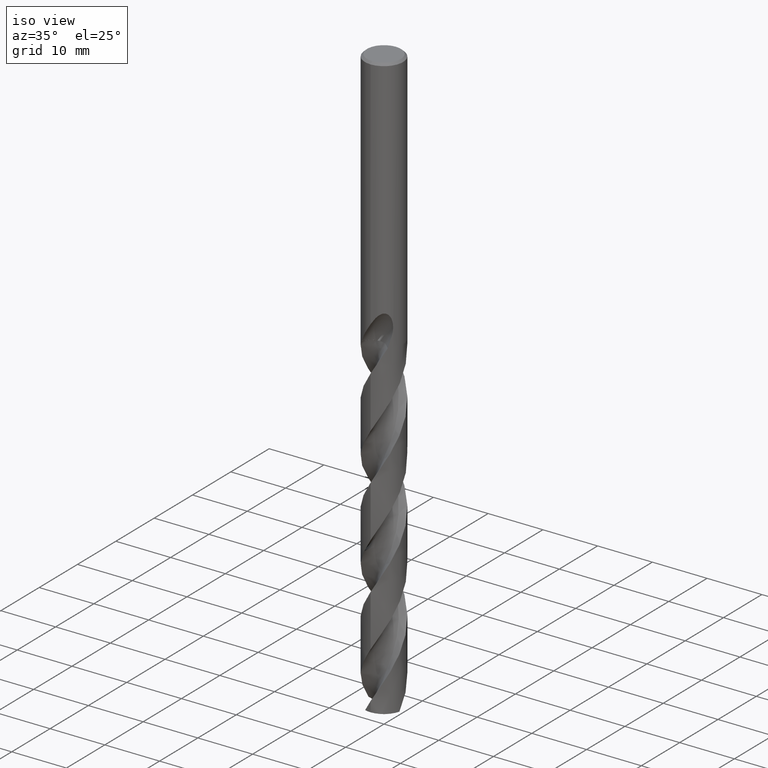
[diagram: clean part render]
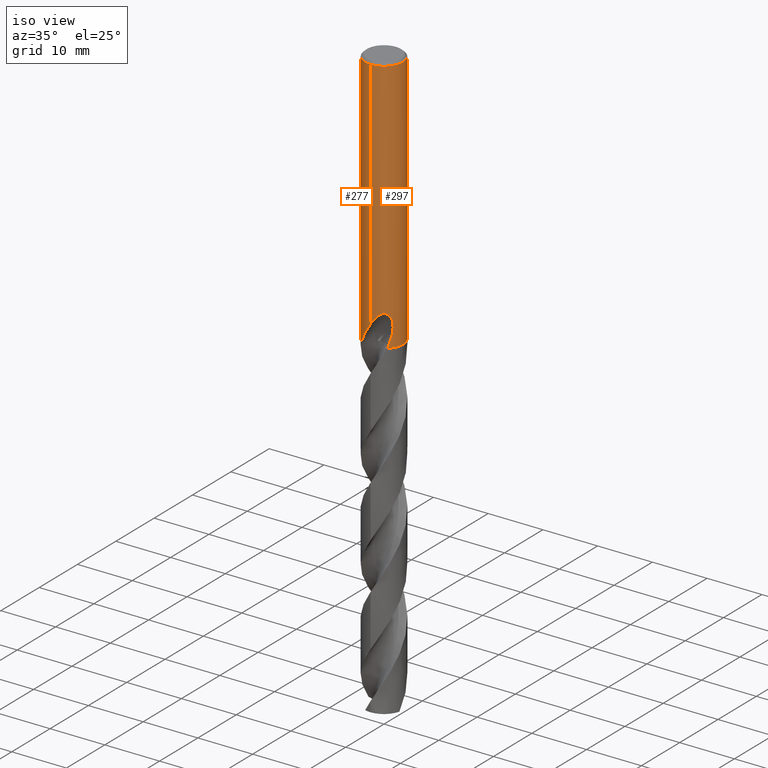
[diagram: same view with one multi-face feature highlighted, each face labeled with its STEP entity id]
A machine part, iso view. The highlighted faces form ONE feature: a constant-radius fillet chain: 2 tangent blend faces with common blend radius 3.5 mm. The faces share edges in the B-rep.
Their STEP definitions:
[1] entity #277 (Cylinder):
#277=ADVANCED_FACE('',(#776),#777,.T.);
#281=VERTEX_POINT('',#782);
#287=EDGE_CURVE('',#439,#727,#788,.T.);
#293=EDGE_CURVE('',#727,#481,#795,.T.);
#327=EDGE_CURVE('',#377,#693,#833,.T.);
#349=VERTEX_POINT('',#856);
#351=EDGE_CURVE('',#621,#405,#858,.T.);
#365=EDGE_CURVE('',#349,#511,#874,.T.);
#377=VERTEX_POINT('',#887);
#391=EDGE_CURVE('',#511,#671,#903,.T.);
#405=VERTEX_POINT('',#918);
#439=VERTEX_POINT('',#955);
#477=EDGE_CURVE('',#651,#621,#994,.T.);
#481=VERTEX_POINT('',#998);
#503=EDGE_CURVE('',#281,#439,#1021,.T.);
#505=EDGE_CURVE('',#535,#693,#1023,.T.);
#511=VERTEX_POINT('',#1029);
#535=VERTEX_POINT('',#1055);
#571=EDGE_CURVE('',#661,#349,#1097,.T.);
#575=VERTEX_POINT('',#1102);
#583=EDGE_CURVE('',#575,#535,#1111,.T.);
#595=EDGE_CURVE('',#671,#575,#1124,.T.);
#621=VERTEX_POINT('',#1151);
#651=VERTEX_POINT('',#1184);
#655=EDGE_CURVE('',#377,#651,#1189,.T.);
#661=VERTEX_POINT('',#1195);
#665=EDGE_CURVE('',#405,#281,#1200,.T.);
#671=VERTEX_POINT('',#1206);
#693=VERTEX_POINT('',#1228);
#727=VERTEX_POINT('',#1267);
#737=EDGE_CURVE('',#481,#661,#1278,.T.);
#776=FACE_OUTER_BOUND('',#1312,.T.);
#777=CYLINDRICAL_SURFACE('',#1313,3.5);
#782=CARTESIAN_POINT('',(-2.60338784749601E-016,3.5,-31.0232688117743));
#788=B_SPLINE_CURVE_WITH_KNOTS('',3,(#1357,#1358,#1359,#1360,#1361,#1362,#1363,#1364,#1365,#1366,#1367,#1368,#1369,#1370,#1371,#1372,#1373,#1374,#1375,#1376,#1377,#1378,#1379,#1380,#1381,#1382,#1383),.UNSPECIFIED.,.F.,.F.,(4,2,3,2,2,2,2,2,2,2,2,2,4),(-0.543484254650614,-0.271742127325307,0.0,0.271742127325305,0.543484254650611,0.816381403157209,1.08927855166381,1.3602045213886,1.63113049111339,1.90263728972204,2.17414408833069,2.44565088693934,2.71715768554799),.UNSPECIFIED.);
#795=CIRCLE('',#1392,3.5);
#833=CIRCLE('',#1915,3.5);
#856=CARTESIAN_POINT('',(-1.83766677017162E-015,3.5,-31.7128911336578));
#858=CIRCLE('',#2083,3.5);
#874=ELLIPSE('',#2101,3.90224951215001,3.5);
#887=CARTESIAN_POINT('',(-2.22788020567131,-2.69936099645415,-47.0));
#903=B_SPLINE_CURVE_WITH_KNOTS('',3,(#2330,#2331,#2332,#2333,#2334,#2335,#2336,#2337,#2338,#2339,#2340,#2341,#2342,#2343,#2344,#2345),.UNSPECIFIED.,.F.,.F.,(4,2,2,2,2,2,2,4),(5.61827440589366,6.24325795604404,6.55552956281653,6.86780116958902,7.18007277636152,7.49234438313401,7.80363043393267,8.11491648473134),.UNSPECIFIED.);
#918=CARTESIAN_POINT('',(0.0,3.5,-0.399999999999999));
#955=CARTESIAN_POINT('',(-0.486378944383046,3.4660403232595,-30.6432837483006));
#994=LINE('',#3463,#3464);
#998=CARTESIAN_POINT('',(-1.0350734039088,3.3434447877183,-30.3171221986971));
#1021=B_SPLINE_CURVE_WITH_KNOTS('',3,(#3822,#3823,#3824,#3825,#3826,#3827,#3828,#3829,#3830,#3831,#3832,#3833,#3834,#3835,#3836,#3837,#3838,#3839,#3840,#3841,#3842,#3843,#3844,#3845,#3846,#3847,#3848),.UNSPECIFIED.,.F.,.F.,(4,2,3,2,2,2,2,2,2,2,2,2,4),(-0.543484254650614,-0.271742127325307,0.0,0.271742127325305,0.543484254650611,0.816381403157209,1.08927855166381,1.3602045213886,1.63113049111339,1.90263728972204,2.17414408833069,2.44565088693934,2.71715768554799),.UNSPECIFIED.);
#1023=B_SPLINE_CURVE_WITH_KNOTS('',3,(#3851,#3852,#3853,#3854),.UNSPECIFIED.,.F.,.F.,(4,4),(0.0,2.00625835281019),.UNSPECIFIED.);
#1029=CARTESIAN_POINT('',(-1.337052752443,3.2345463263315,-32.3720803908795));
#1055=CARTESIAN_POINT('',(-2.84774757150296,2.0347810125414,-45.0884691981407));
#1097=LINE('',#6696,#6697);
#1102=CARTESIAN_POINT('',(-1.09667056523172E-012,3.5,-43.2845758815807));
#1111=B_SPLINE_CURVE_WITH_KNOTS('',3,(#6714,#6715,#6716,#6717,#6718,#6719,#6720,#6721,#6722,#6723,#6724,#6725,#6726,#6727,#6728,#6729,#6730,#6731,#6732,#6733,#6734,#6735,#6736,#6737,#6738,#6739,#6740,#6741,#6742,#6743),.UNSPECIFIED.,.F.,.F.,(4,2,2,2,2,2,2,2,2,2,2,2,2,2,4),(0.0,1.71116526738578,2.6471547265802,3.49547007862415,4.48132816066723,5.66529751259973,6.68921363620308,7.15405976581515,7.49385065034492,7.81542178656768,8.2233983531826,8.82032236343904,9.66889340506496,10.2238822809222,10.8071269736046),.UNSPECIFIED.);
#1124=LINE('',#7018,#7019);
#1151=CARTESIAN_POINT('',(4.28612223837832E-016,-3.5,-0.399999999999999));
#1184=CARTESIAN_POINT('',(1.09977918970067E-012,-3.5,-43.2845758815807));
#1189=B_SPLINE_CURVE_WITH_KNOTS('',3,(#7741,#7742,#7743,#7744,#7745,#7746,#7747,#7748,#7749,#7750,#7751,#7752,#7753,#7754,#7755,#7756,#7757,#7758,#7759,#7760,#7761,#7762,#7763,#7764,#7765,#7766,#7767,#7768,#7769,#7770),.UNSPECIFIED.,.F.,.F.,(4,2,2,2,2,2,2,2,2,2,2,2,2,2,4),(0.0,1.71116526738577,2.64715472658023,3.49547007862428,4.48132816066744,5.66529751259995,6.68921363620334,7.15405976581542,7.49385065034519,7.81542178656799,8.22339835318292,8.82032236343982,9.66889340506738,10.2238822809258,10.8071269736094),.UNSPECIFIED.);
#1195=CARTESIAN_POINT('',(2.35719168458961E-016,3.5,-31.5000801551881));
#1200=LINE('',#7786,#7787);
#1206=CARTESIAN_POINT('',(-2.46407913303377E-016,3.5,-33.0310253601033));
#1228=CARTESIAN_POINT('',(-2.43409041602597,2.51499579455126,-47.0));
#1267=CARTESIAN_POINT('',(-0.562333990228013,3.45453042878974,-30.3171221986971));
#1278=B_SPLINE_CURVE_WITH_KNOTS('',3,(#8212,#8213,#8214,#8215,#8216,#8217,#8218,#8219,#8220,#8221,#8222,#8223,#8224,#8225),.UNSPECIFIED.,.F.,.F.,(4,2,2,2,2,2,4),(3.14868984543855,3.59790121580492,4.04711258617129,4.49632395653767,4.94357829339147,5.39083263024527,5.84328787107555),.UNSPECIFIED.);
#1312=EDGE_LOOP('',(#8569,#8570,#8571,#8572,#8573,#8574,#8575,#8576,#8577,#8578,#8579,#8580,#8581,#8582,#8583));
#1313=AXIS2_PLACEMENT_3D('',#8584,#8585,#8586);
#1357=CARTESIAN_POINT('',(0.665413128961688,3.4361643394642,-29.8138871855834));
#1358=CARTESIAN_POINT('',(0.728801807700797,3.42388912358581,-29.8774171733485));
#1359=CARTESIAN_POINT('',(0.783927402615871,3.4112870773283,-29.9579012004541));
#1360=CARTESIAN_POINT('',(0.857236734720557,3.39360677006719,-30.1347078448073));
#1361=CARTESIAN_POINT('',(0.875400981188567,3.38875686972879,-30.2310613034783));
#1362=CARTESIAN_POINT('',(0.875400981188567,3.38875686972879,-30.3216420125868));
#1363=CARTESIAN_POINT('',(0.875400981188567,3.38875686972879,-30.4122227216952));
#1364=CARTESIAN_POINT('',(0.857236734720557,3.39360677006719,-30.5085761803663));
#1365=CARTESIAN_POINT('',(0.783927402615871,3.4112870773283,-30.6853828247195));
#1366=CARTESIAN_POINT('',(0.728801807700796,3.42388912358581,-30.765866851825));
#1367=CARTESIAN_POINT('',(0.601755021012917,3.44849173030156,-30.8931968571892));
#1368=CARTESIAN_POINT('',(0.521126730147254,3.46213736669293,-30.9485794814319));
#1369=CARTESIAN_POINT('',(0.34396562102774,3.48420089342214,-31.0222492773525));
#1370=CARTESIAN_POINT('',(0.247401094025478,3.49243002223282,-31.0405166027747));
#1371=CARTESIAN_POINT('',(0.0663080901676053,3.50053694318896,-31.0405166027747));
#1372=CARTESIAN_POINT('',(-0.0299521610428208,3.50099182377608,-31.0224848215348));
#1373=CARTESIAN_POINT('',(-0.206948225759865,3.49499832821332,-30.9492096137884));
#1374=CARTESIAN_POINT('',(-0.287693654744308,3.48874427648497,-30.8939736481506));
#1375=CARTESIAN_POINT('',(-0.41531184898676,3.47586506507811,-30.766536164624));
#1376=CARTESIAN_POINT('',(-0.470694976922282,3.46840404735172,-30.6857495661433));
#1377=CARTESIAN_POINT('',(-0.54421745324327,3.45763037063203,-30.5085617731862));
#1378=CARTESIAN_POINT('',(-0.562348199187247,3.45452811580263,-30.4121442787897));
#1379=CARTESIAN_POINT('',(-0.562348199187247,3.45452811580263,-30.2311397463839));
#1380=CARTESIAN_POINT('',(-0.54421745324327,3.45763037063203,-30.1347222519874));
#1381=CARTESIAN_POINT('',(-0.470694976922282,3.46840404735172,-29.9575344590302));
#1382=CARTESIAN_POINT('',(-0.415311848986761,3.4758650650781,-29.8767478605496));
#1383=CARTESIAN_POINT('',(-0.35143442604006,3.48231156621487,-29.812960889712));
#1392=AXIS2_PLACEMENT_3D('',#8613,#8614,#8615);
#1915=AXIS2_PLACEMENT_3D('',#8659,#8660,#8661);
#2083=AXIS2_PLACEMENT_3D('',#8690,#8691,#8692);
#2101=AXIS2_PLACEMENT_3D('',#8712,#8713,#8714);
#2330=CARTESIAN_POINT('',(-1.53123731367784,3.14727060946476,-32.0302338343776));
#2331=CARTESIAN_POINT('',(-1.44775267944815,3.18788821160556,-32.2301414615575));
#2332=CARTESIAN_POINT('',(-1.32320222892012,3.24378293325148,-32.4109343660825));
#2333=CARTESIAN_POINT('',(-1.10913330987776,3.32047634661098,-32.6251722383969));
#2334=CARTESIAN_POINT('',(-1.02846849785727,3.34673271569839,-32.6924314529816));
#2335=CARTESIAN_POINT('',(-0.852249083524064,3.39588557240625,-32.811532240935));
#2336=CARTESIAN_POINT('',(-0.756690285094466,3.41874417478296,-32.8633832377954));
#2337=CARTESIAN_POINT('',(-0.556428067737093,3.45698998176039,-32.9471055144934));
#2338=CARTESIAN_POINT('',(-0.451538779348603,3.47238505605531,-32.979042792402));
#2339=CARTESIAN_POINT('',(-0.239551382953059,3.49341672030683,-33.0211333159068));
#2340=CARTESIAN_POINT('',(-0.132449287258507,3.49904158676405,-33.0312723335086));
#2341=CARTESIAN_POINT('',(0.0753964406951089,3.50072591513367,-33.0312723335086));
#2342=CARTESIAN_POINT('',(0.182252054665213,3.4968642077971,-33.0211960308233));
#2343=CARTESIAN_POINT('',(0.393900025309805,3.47938469693247,-32.9792754410164));
#2344=CARTESIAN_POINT('',(0.498695976318739,3.46577875917864,-32.9474443552278));
#2345=CARTESIAN_POINT('',(0.598786051859585,3.44839894213219,-32.9056824050372));
#3463=CARTESIAN_POINT('',(4.28612223837832E-016,-3.5,-41.0));
#3464=VECTOR('',#8798,1.0);
#3822=CARTESIAN_POINT('',(0.665413128961688,3.4361643394642,-29.8138871855834));
#3823=CARTESIAN_POINT('',(0.728801807700797,3.42388912358581,-29.8774171733485));
#3824=CARTESIAN_POINT('',(0.783927402615871,3.4112870773283,-29.9579012004541));
#3825=CARTESIAN_POINT('',(0.857236734720557,3.39360677006719,-30.1347078448073));
#3826=CARTESIAN_POINT('',(0.875400981188567,3.38875686972879,-30.2310613034783));
#3827=CARTESIAN_POINT('',(0.875400981188567,3.38875686972879,-30.3216420125868));
#3828=CARTESIAN_POINT('',(0.875400981188567,3.38875686972879,-30.4122227216952));
#3829=CARTESIAN_POINT('',(0.857236734720557,3.39360677006719,-30.5085761803663));
#3830=CARTESIAN_POINT('',(0.783927402615871,3.4112870773283,-30.6853828247195));
#3831=CARTESIAN_POINT('',(0.728801807700796,3.42388912358581,-30.765866851825));
#3832=CARTESIAN_POINT('',(0.601755021012917,3.44849173030156,-30.8931968571892));
#3833=CARTESIAN_POINT('',(0.521126730147254,3.46213736669293,-30.9485794814319));
#3834=CARTESIAN_POINT('',(0.34396562102774,3.48420089342214,-31.0222492773525));
#3835=CARTESIAN_POINT('',(0.247401094025478,3.49243002223282,-31.0405166027747));
#3836=CARTESIAN_POINT('',(0.0663080901676053,3.50053694318896,-31.0405166027747));
#3837=CARTESIAN_POINT('',(-0.0299521610428208,3.50099182377608,-31.0224848215348));
#3838=CARTESIAN_POINT('',(-0.206948225759865,3.49499832821332,-30.9492096137884));
#3839=CARTESIAN_POINT('',(-0.287693654744308,3.48874427648497,-30.8939736481506));
#3840=CARTESIAN_POINT('',(-0.41531184898676,3.47586506507811,-30.766536164624));
#3841=CARTESIAN_POINT('',(-0.470694976922282,3.46840404735172,-30.6857495661433));
#3842=CARTESIAN_POINT('',(-0.54421745324327,3.45763037063203,-30.5085617731862));
#3843=CARTESIAN_POINT('',(-0.562348199187247,3.45452811580263,-30.4121442787897));
#3844=CARTESIAN_POINT('',(-0.562348199187247,3.45452811580263,-30.2311397463839));
#3845=CARTESIAN_POINT('',(-0.54421745324327,3.45763037063203,-30.1347222519874));
#3846=CARTESIAN_POINT('',(-0.470694976922282,3.46840404735172,-29.9575344590302));
#3847=CARTESIAN_POINT('',(-0.415311848986761,3.4758650650781,-29.8767478605496));
#3848=CARTESIAN_POINT('',(-0.35143442604006,3.48231156621487,-29.812960889712));
#3851=CARTESIAN_POINT('',(-2.84774757155558,2.03478101246776,-45.0884691981696));
#3852=CARTESIAN_POINT('',(-2.73520559144386,2.19228747070451,-45.7285912996434));
#3853=CARTESIAN_POINT('',(-2.59962684009133,2.35478454322685,-46.3724886670535));
#3854=CARTESIAN_POINT('',(-2.43409041602597,2.51499579455126,-47.0));
#6696=CARTESIAN_POINT('',(-4.28612223837832E-016,3.5,-41.0));
#6697=VECTOR('',#8901,1.0);
#6714=CARTESIAN_POINT('',(2.22788020567131,2.69936099645415,-47.0));
#6715=CARTESIAN_POINT('',(1.99719159188123,2.88975664824426,-46.5143301412218));
#6716=CARTESIAN_POINT('',(1.73214903030966,3.05890396288868,-46.0613465845068));
#6717=CARTESIAN_POINT('',(1.26999573360871,3.26637335586691,-45.304388724739));
#6718=CARTESIAN_POINT('',(1.10351084140645,3.3261172119942,-45.0377512741831));
#6719=CARTESIAN_POINT('',(0.781136880226727,3.41542364565152,-44.5214754124551));
#6720=CARTESIAN_POINT('',(0.626675959849315,3.44697551654545,-44.2742256543397));
#6721=CARTESIAN_POINT('',(0.292278909775119,3.49248861304705,-43.7412656221696));
#6722=CARTESIAN_POINT('',(0.109536495543732,3.5031427002148,-43.4513656355811));
#6723=CARTESIAN_POINT('',(-0.296248336068786,3.49446488856638,-42.8313077662228));
#6724=CARTESIAN_POINT('',(-0.536865124410824,3.46797391471762,-42.4784894354584));
#6725=CARTESIAN_POINT('',(-1.00041513009419,3.36122504980303,-41.8975134590273));
#6726=CARTESIAN_POINT('',(-1.25648832711691,3.28009029752943,-41.614490392444));
#6727=CARTESIAN_POINT('',(-1.64428244300897,3.0926399881936,-41.3491609865939));
#6728=CARTESIAN_POINT('',(-1.77280058327279,3.02178876482678,-41.2835152062399));
#6729=CARTESIAN_POINT('',(-1.99800254681398,2.87590424669205,-41.2331059660729));
#6730=CARTESIAN_POINT('',(-2.09037450523512,2.8094646902443,-41.2321825229868));
#6731=CARTESIAN_POINT('',(-2.26242552063036,2.67261234439629,-41.2763741502796));
#6732=CARTESIAN_POINT('',(-2.33767336217516,2.60651413542985,-41.3177943327217));
#6733=CARTESIAN_POINT('',(-2.49080707667389,2.46166107053409,-41.4473812335749));
#6734=CARTESIAN_POINT('',(-2.5616541757807,2.38659329896527,-41.5430563387451));
#6735=CARTESIAN_POINT('',(-2.70677221811451,2.22267754950861,-41.8050411184839));
#6736=CARTESIAN_POINT('',(-2.77613325123736,2.13341553099108,-41.9993577024745));
#6737=CARTESIAN_POINT('',(-2.90654992237709,1.9542000156387,-42.5430120043922));
#6738=CARTESIAN_POINT('',(-2.95368886762876,1.87787844140109,-42.9301887437042));
#6739=CARTESIAN_POINT('',(-2.97697568934912,1.8406296388518,-43.6465969060637));
#6740=CARTESIAN_POINT('',(-2.9714752256431,1.84974977950941,-43.9318038917312));
#6741=CARTESIAN_POINT('',(-2.93270565007084,1.91065596943216,-44.5106268672011));
#6742=CARTESIAN_POINT('',(-2.89810230297526,1.96430779533519,-44.8020644781158));
#6743=CARTESIAN_POINT('',(-2.84774757150296,2.0347810125414,-45.0884691981407));
#7018=CARTESIAN_POINT('',(-4.28612223837832E-016,3.5,-41.0));
#7019=VECTOR('',#8945,1.0);
#7741=CARTESIAN_POINT('',(-2.22788020567131,-2.69936099645415,-47.0));
#7742=CARTESIAN_POINT('',(-1.99719159188123,-2.88975664824426,-46.5143301412218));
#7743=CARTESIAN_POINT('',(-1.73214903030967,-3.05890396288868,-46.0613465845068));
#7744=CARTESIAN_POINT('',(-1.26999573360869,-3.26637335586692,-45.304388724739));
#7745=CARTESIAN_POINT('',(-1.10351084140642,-3.3261172119942,-45.0377512741831));
#7746=CARTESIAN_POINT('',(-0.781136880226735,-3.41542364565152,-44.5214754124552));
#7747=CARTESIAN_POINT('',(-0.626675959849333,-3.44697551654544,-44.2742256543397));
#7748=CARTESIAN_POINT('',(-0.292278909775104,-3.49248861304705,-43.7412656221696));
#7749=CARTESIAN_POINT('',(-0.109536495543727,-3.5031427002148,-43.4513656355811));
#7750=CARTESIAN_POINT('',(0.296248336068766,-3.49446488856638,-42.8313077662228));
#7751=CARTESIAN_POINT('',(0.536865124410818,-3.46797391471762,-42.4784894354584));
#7752=CARTESIAN_POINT('',(1.0004151300942,-3.36122504980303,-41.8975134590273));
#7753=CARTESIAN_POINT('',(1.25648832711691,-3.28009029752943,-41.614490392444));
#7754=CARTESIAN_POINT('',(1.64428244300897,-3.0926399881936,-41.3491609865939));
#7755=CARTESIAN_POINT('',(1.77280058327279,-3.02178876482678,-41.2835152062399));
#7756=CARTESIAN_POINT('',(1.99800254681398,-2.87590424669204,-41.2331059660729));
#7757=CARTESIAN_POINT('',(2.09037450523512,-2.8094646902443,-41.2321825229868));
#7758=CARTESIAN_POINT('',(2.26242552063036,-2.67261234439628,-41.2763741502796));
#7759=CARTESIAN_POINT('',(2.33767336217516,-2.60651413542985,-41.3177943327217));
#7760=CARTESIAN_POINT('',(2.49080707667388,-2.4616610705341,-41.4473812335749));
#7761=CARTESIAN_POINT('',(2.56165417578068,-2.38659329896529,-41.543056338745));
#7762=CARTESIAN_POINT('',(2.7067722181146,-2.2226775495085,-41.8050411184841));
#7763=CARTESIAN_POINT('',(2.77613325123742,-2.13341553099099,-41.9993577024747));
#7764=CARTESIAN_POINT('',(2.90654992237709,-1.9542000156387,-42.5430120043922));
#7765=CARTESIAN_POINT('',(2.95368886762875,-1.87787844140108,-42.9301887437042));
#7766=CARTESIAN_POINT('',(2.97697568934912,-1.8406296388518,-43.6465969060637));
#7767=CARTESIAN_POINT('',(2.9714752256431,-1.84974977950941,-43.9318038917312));
#7768=CARTESIAN_POINT('',(2.93270565007084,-1.91065596943216,-44.5106268672011));
#7769=CARTESIAN_POINT('',(2.89810230297526,-1.96430779533519,-44.8020644781158));
#7770=CARTESIAN_POINT('',(2.84774757150296,-2.0347810125414,-45.0884691981407));
#7786=CARTESIAN_POINT('',(-4.28612223837832E-016,3.5,-41.0));
#7787=VECTOR('',#9033,1.0);
#8212=CARTESIAN_POINT('',(-0.944307490380333,3.37020524057684,-29.8717651490864));
#8213=CARTESIAN_POINT('',(-1.00496698866381,3.35320889421175,-30.0175318411201));
#8214=CARTESIAN_POINT('',(-1.03510901790186,3.34343376202643,-30.1765647372773));
#8215=CARTESIAN_POINT('',(-1.03510901790186,3.34343376202643,-30.4760389841882));
#8216=CARTESIAN_POINT('',(-1.00496698866381,3.35320889421175,-30.6350718803454));
#8217=CARTESIAN_POINT('',(-0.883647992096945,3.38720158694204,-30.926605264413));
#8218=CARTESIAN_POINT('',(-0.792514562065458,3.4107740733388,-31.059198719528));
#8219=CARTESIAN_POINT('',(-0.583048977875112,3.45273998034241,-31.2681426379538));
#8220=CARTESIAN_POINT('',(-0.450605187412835,3.47394398601465,-31.358860520234));
#8221=CARTESIAN_POINT('',(-0.1596086430032,3.49940808319632,-31.4794965162912));
#8222=CARTESIAN_POINT('',(-0.000993756140916791,3.50317360171655,-31.5093686300866));
#8223=CARTESIAN_POINT('',(0.298641343955564,3.49049560113808,-31.5093686300866));
#8224=CARTESIAN_POINT('',(0.45806478067448,3.4730477764206,-31.4788707402713));
#8225=CARTESIAN_POINT('',(0.603780062024145,3.44752804726838,-31.4180312236858));
#8569=ORIENTED_EDGE('',*,*,#665,.T.);
#8570=ORIENTED_EDGE('',*,*,#503,.T.);
#8571=ORIENTED_EDGE('',*,*,#287,.T.);
#8572=ORIENTED_EDGE('',*,*,#293,.T.);
#8573=ORIENTED_EDGE('',*,*,#737,.T.);
#8574=ORIENTED_EDGE('',*,*,#571,.T.);
#8575=ORIENTED_EDGE('',*,*,#365,.T.);
#8576=ORIENTED_EDGE('',*,*,#391,.T.);
#8577=ORIENTED_EDGE('',*,*,#595,.T.);
#8578=ORIENTED_EDGE('',*,*,#583,.T.);
#8579=ORIENTED_EDGE('',*,*,#505,.T.);
#8580=ORIENTED_EDGE('',*,*,#327,.F.);
#8581=ORIENTED_EDGE('',*,*,#655,.T.);
#8582=ORIENTED_EDGE('',*,*,#477,.T.);
#8583=ORIENTED_EDGE('',*,*,#351,.T.);
#8584=CARTESIAN_POINT('',(0.0,0.0,-41.0));
#8585=DIRECTION('',(-0.0,-0.0,1.0));
#8586=DIRECTION('',(0.0,1.0,0.0));
#8613=CARTESIAN_POINT('',(0.0,0.0,-30.3171221986971));
#8614=DIRECTION('',(0.0,-0.0,1.0));
#8615=DIRECTION('',(0.0,1.0,0.0));
#8659=CARTESIAN_POINT('',(0.0,0.0,-47.0));
#8660=DIRECTION('',(0.0,0.0,-1.0));
#8661=DIRECTION('',(0.0,1.0,0.0));
#8690=CARTESIAN_POINT('',(0.0,0.0,-0.399999999999999));
#8691=DIRECTION('',(0.0,0.0,-1.0));
#8692=DIRECTION('',(0.0,1.0,0.0));
#8712=CARTESIAN_POINT('',(0.0,0.0,-31.7128911336578));
#8713=DIRECTION('',(-0.442195774284071,0.0,0.896918556617774));
#8714=DIRECTION('',(0.896918556617774,-0.0,0.442195774284071));
#8798=DIRECTION('',(-0.0,-0.0,1.0));
#8901=DIRECTION('',(0.0,0.0,-1.0));
#8945=DIRECTION('',(0.0,0.0,-1.0));
#9033=DIRECTION('',(0.0,0.0,-1.0));
[2] entity #297 (Cylinder):
#281=VERTEX_POINT('',#782);
#297=ADVANCED_FACE('',(#799),#800,.T.);
#363=EDGE_CURVE('',#495,#623,#872,.T.);
#369=VERTEX_POINT('',#878);
#373=EDGE_CURVE('',#397,#699,#882,.T.);
#389=EDGE_CURVE('',#425,#435,#901,.T.);
#397=VERTEX_POINT('',#910);
#405=VERTEX_POINT('',#918);
#423=EDGE_CURVE('',#623,#425,#937,.T.);
#425=VERTEX_POINT('',#939);
#435=VERTEX_POINT('',#950);
#445=EDGE_CURVE('',#563,#575,#961,.T.);
#451=EDGE_CURVE('',#651,#397,#967,.T.);
#453=EDGE_CURVE('',#435,#369,#969,.T.);
#467=EDGE_CURVE('',#671,#495,#984,.T.);
#477=EDGE_CURVE('',#651,#621,#994,.T.);
#495=VERTEX_POINT('',#1013);
#515=EDGE_CURVE('',#719,#281,#1033,.T.);
#563=VERTEX_POINT('',#1087);
#575=VERTEX_POINT('',#1102);
#581=EDGE_CURVE('',#563,#699,#1109,.T.);
#595=EDGE_CURVE('',#671,#575,#1124,.T.);
#603=EDGE_CURVE('',#405,#621,#1132,.T.);
#621=VERTEX_POINT('',#1151);
#623=VERTEX_POINT('',#1153);
#651=VERTEX_POINT('',#1184);
#665=EDGE_CURVE('',#405,#281,#1200,.T.);
#671=VERTEX_POINT('',#1206);
#683=EDGE_CURVE('',#369,#719,#1218,.T.);
#699=VERTEX_POINT('',#1234);
#719=VERTEX_POINT('',#1259);
#782=CARTESIAN_POINT('',(-2.60338784749601E-016,3.5,-31.0232688117743));
#799=FACE_OUTER_BOUND('',#1396,.T.);
#800=CYLINDRICAL_SURFACE('',#1397,3.5);
#872=ELLIPSE('',#2098,10.6679810067942,3.5);
#878=CARTESIAN_POINT('',(1.33721006514658,3.23448129406721,-30.5150484364821));
#882=B_SPLINE_CURVE_WITH_KNOTS('',3,(#2270,#2271,#2272,#2273),.UNSPECIFIED.,.F.,.F.,(4,4),(0.0,2.00625835281026),.UNSPECIFIED.);
#901=B_SPLINE_CURVE_WITH_KNOTS('',3,(#2320,#2321,#2322,#2323,#2324,#2325,#2326,#2327),.UNSPECIFIED.,.F.,.F.,(4,2,2,4),(8.11491483423205,8.42620085461766,8.73748687500328,9.36203338164391),.UNSPECIFIED.);
#910=CARTESIAN_POINT('',(2.84774757150296,-2.0347810125414,-45.0884691981407));
#918=CARTESIAN_POINT('',(0.0,3.5,-0.399999999999999));
#937=LINE('',#2547,#2548);
#939=CARTESIAN_POINT('',(0.873560781758956,3.3892317065336,-32.7587351791531));
#950=CARTESIAN_POINT('',(1.33721006514658,3.23448129406721,-32.2901657003257));
#961=B_SPLINE_CURVE_WITH_KNOTS('',3,(#2740,#2741,#2742,#2743,#2744,#2745,#2746,#2747,#2748,#2749,#2750,#2751,#2752,#2753,#2754,#2755,#2756,#2757,#2758,#2759,#2760,#2761,#2762,#2763,#2764,#2765,#2766,#2767,#2768,#2769),.UNSPECIFIED.,.F.,.F.,(4,2,2,2,2,2,2,2,2,2,2,2,2,2,4),(0.0,1.71116526738578,2.6471547265802,3.49547007862415,4.48132816066723,5.66529751259973,6.68921363620308,7.15405976581515,7.49385065034492,7.81542178656768,8.2233983531826,8.82032236343904,9.66889340506496,10.2238822809222,10.8071269736046),.UNSPECIFIED.);
#967=B_SPLINE_CURVE_WITH_KNOTS('',3,(#2782,#2783,#2784,#2785,#2786,#2787,#2788,#2789,#2790,#2791,#2792,#2793,#2794,#2795,#2796,#2797,#2798,#2799,#2800,#2801,#2802,#2803,#2804,#2805,#2806,#2807,#2808,#2809,#2810,#2811),.UNSPECIFIED.,.F.,.F.,(4,2,2,2,2,2,2,2,2,2,2,2,2,2,4),(0.0,1.71116526738577,2.64715472658023,3.49547007862428,4.48132816066744,5.66529751259995,6.68921363620334,7.15405976581542,7.49385065034519,7.81542178656799,8.22339835318292,8.82032236343982,9.66889340506738,10.2238822809258,10.8071269736094),.UNSPECIFIED.);
#969=LINE('',#2814,#2815);
#984=B_SPLINE_CURVE_WITH_KNOTS('',3,(#3278,#3279,#3280,#3281,#3282,#3283,#3284,#3285,#3286,#3287,#3288,#3289,#3290,#3291,#3292,#3293),.UNSPECIFIED.,.F.,.F.,(4,2,2,2,2,2,2,4),(5.61827440589366,6.24325795604404,6.55552956281653,6.86780116958902,7.18007277636152,7.49234438313401,7.80363043393267,8.11491648473134),.UNSPECIFIED.);
#994=LINE('',#3463,#3464);
#1013=CARTESIAN_POINT('',(0.29010312703583,3.4879564469305,-32.9998328990228));
#1033=B_SPLINE_CURVE_WITH_KNOTS('',3,(#4040,#4041,#4042,#4043,#4044,#4045,#4046,#4047,#4048,#4049,#4050,#4051,#4052,#4053,#4054,#4055,#4056,#4057,#4058,#4059,#4060,#4061,#4062,#4063,#4064,#4065,#4066),.UNSPECIFIED.,.F.,.F.,(4,2,3,2,2,2,2,2,2,2,2,2,4),(-0.543484254650614,-0.271742127325307,0.0,0.271742127325305,0.543484254650611,0.816381403157209,1.08927855166381,1.3602045213886,1.63113049111339,1.90263728972204,2.17414408833069,2.44565088693934,2.71715768554799),.UNSPECIFIED.);
#1087=CARTESIAN_POINT('',(2.22788020567131,2.69936099645415,-47.0));
#1102=CARTESIAN_POINT('',(-1.09667056523172E-012,3.5,-43.2845758815807));
#1109=CIRCLE('',#6711,3.5);
#1124=LINE('',#7018,#7019);
#1132=CIRCLE('',#7032,3.5);
#1151=CARTESIAN_POINT('',(4.28612223837832E-016,-3.5,-0.399999999999999));
#1153=CARTESIAN_POINT('',(0.873560781758957,3.3892317065336,-31.3198931596091));
#1184=CARTESIAN_POINT('',(1.09977918970067E-012,-3.5,-43.2845758815807));
#1200=LINE('',#7786,#7787);
#1206=CARTESIAN_POINT('',(-2.46407913303377E-016,3.5,-33.0310253601033));
#1218=B_SPLINE_CURVE_WITH_KNOTS('',3,(#7969,#7970,#7971,#7972,#7973,#7974,#7975,#7976),.UNSPECIFIED.,.F.,.F.,(4,2,2,4),(0.624546528652094,1.24909305730419,1.56037908800226,1.87166511870033),.UNSPECIFIED.);
#1234=CARTESIAN_POINT('',(2.43409041602597,-2.51499579455126,-47.0));
#1259=CARTESIAN_POINT('',(0.799431726384364,3.40747838068712,-30.000000276873));
#1396=EDGE_LOOP('',(#8617,#8618,#8619,#8620,#8621,#8622,#8623,#8624,#8625,#8626,#8627,#8628,#8629,#8630,#8631));
#1397=AXIS2_PLACEMENT_3D('',#8632,#8633,#8634);
#2098=AXIS2_PLACEMENT_3D('',#8709,#8710,#8711);
#2270=CARTESIAN_POINT('',(2.84774757155558,-2.03478101246776,-45.0884691981696));
#2271=CARTESIAN_POINT('',(2.73520559144386,-2.19228747070451,-45.7285912996434));
#2272=CARTESIAN_POINT('',(2.59962684009132,-2.35478454322685,-46.3724886670535));
#2273=CARTESIAN_POINT('',(2.43409041602597,-2.51499579455126,-47.0));
#2320=CARTESIAN_POINT('',(0.598785775773883,3.44839899007219,-32.9056819718386));
#2321=CARTESIAN_POINT('',(0.698875842852593,3.43101918275014,-32.8639200255472));
#2322=CARTESIAN_POINT('',(0.794447828707065,3.40986068745267,-32.8121599224313));
#2323=CARTESIAN_POINT('',(0.970738974131946,3.36392079345465,-32.6932085813539));
#2324=CARTESIAN_POINT('',(1.05146190780561,3.33917763196613,-32.6260081725635));
#2325=CARTESIAN_POINT('',(1.2660498821522,3.26649347560504,-32.4115829328698));
#2326=CARTESIAN_POINT('',(1.390867842115,3.21309527609625,-32.2304759106637));
#2327=CARTESIAN_POINT('',(1.47445836881577,3.17426724121161,-32.0303633883205));
#2547=CARTESIAN_POINT('',(0.873560781758957,3.3892317065336,-32.0393141693811));
#2548=VECTOR('',#8762,1.0);
#2740=CARTESIAN_POINT('',(2.22788020567131,2.69936099645415,-47.0));
#2741=CARTESIAN_POINT('',(1.99719159188123,2.88975664824426,-46.5143301412218));
#2742=CARTESIAN_POINT('',(1.73214903030966,3.05890396288868,-46.0613465845068));
#2743=CARTESIAN_POINT('',(1.26999573360871,3.26637335586691,-45.304388724739));
#2744=CARTESIAN_POINT('',(1.10351084140645,3.3261172119942,-45.0377512741831));
#2745=CARTESIAN_POINT('',(0.781136880226727,3.41542364565152,-44.5214754124551));
#2746=CARTESIAN_POINT('',(0.626675959849315,3.44697551654545,-44.2742256543397));
#2747=CARTESIAN_POINT('',(0.292278909775119,3.49248861304705,-43.7412656221696));
#2748=CARTESIAN_POINT('',(0.109536495543732,3.5031427002148,-43.4513656355811));
#2749=CARTESIAN_POINT('',(-0.296248336068786,3.49446488856638,-42.8313077662228));
#2750=CARTESIAN_POINT('',(-0.536865124410824,3.46797391471762,-42.4784894354584));
#2751=CARTESIAN_POINT('',(-1.00041513009419,3.36122504980303,-41.8975134590273));
#2752=CARTESIAN_POINT('',(-1.25648832711691,3.28009029752943,-41.614490392444));
#2753=CARTESIAN_POINT('',(-1.64428244300897,3.0926399881936,-41.3491609865939));
#2754=CARTESIAN_POINT('',(-1.77280058327279,3.02178876482678,-41.2835152062399));
#2755=CARTESIAN_POINT('',(-1.99800254681398,2.87590424669205,-41.2331059660729));
#2756=CARTESIAN_POINT('',(-2.09037450523512,2.8094646902443,-41.2321825229868));
#2757=CARTESIAN_POINT('',(-2.26242552063036,2.67261234439629,-41.2763741502796));
#2758=CARTESIAN_POINT('',(-2.33767336217516,2.60651413542985,-41.3177943327217));
#2759=CARTESIAN_POINT('',(-2.49080707667389,2.46166107053409,-41.4473812335749));
#2760=CARTESIAN_POINT('',(-2.5616541757807,2.38659329896527,-41.5430563387451));
#2761=CARTESIAN_POINT('',(-2.70677221811451,2.22267754950861,-41.8050411184839));
#2762=CARTESIAN_POINT('',(-2.77613325123736,2.13341553099108,-41.9993577024745));
#2763=CARTESIAN_POINT('',(-2.90654992237709,1.9542000156387,-42.5430120043922));
#2764=CARTESIAN_POINT('',(-2.95368886762876,1.87787844140109,-42.9301887437042));
#2765=CARTESIAN_POINT('',(-2.97697568934912,1.8406296388518,-43.6465969060637));
#2766=CARTESIAN_POINT('',(-2.9714752256431,1.84974977950941,-43.9318038917312));
#2767=CARTESIAN_POINT('',(-2.93270565007084,1.91065596943216,-44.5106268672011));
#2768=CARTESIAN_POINT('',(-2.89810230297526,1.96430779533519,-44.8020644781158));
#2769=CARTESIAN_POINT('',(-2.84774757150296,2.0347810125414,-45.0884691981407));
#2782=CARTESIAN_POINT('',(-2.22788020567131,-2.69936099645415,-47.0));
#2783=CARTESIAN_POINT('',(-1.99719159188123,-2.88975664824426,-46.5143301412218));
#2784=CARTESIAN_POINT('',(-1.73214903030967,-3.05890396288868,-46.0613465845068));
#2785=CARTESIAN_POINT('',(-1.26999573360869,-3.26637335586692,-45.304388724739));
#2786=CARTESIAN_POINT('',(-1.10351084140642,-3.3261172119942,-45.0377512741831));
#2787=CARTESIAN_POINT('',(-0.781136880226735,-3.41542364565152,-44.5214754124552));
#2788=CARTESIAN_POINT('',(-0.626675959849333,-3.44697551654544,-44.2742256543397));
#2789=CARTESIAN_POINT('',(-0.292278909775104,-3.49248861304705,-43.7412656221696));
#2790=CARTESIAN_POINT('',(-0.109536495543727,-3.5031427002148,-43.4513656355811));
#2791=CARTESIAN_POINT('',(0.296248336068766,-3.49446488856638,-42.8313077662228));
#2792=CARTESIAN_POINT('',(0.536865124410818,-3.46797391471762,-42.4784894354584));
#2793=CARTESIAN_POINT('',(1.0004151300942,-3.36122504980303,-41.8975134590273));
#2794=CARTESIAN_POINT('',(1.25648832711691,-3.28009029752943,-41.614490392444));
#2795=CARTESIAN_POINT('',(1.64428244300897,-3.0926399881936,-41.3491609865939));
#2796=CARTESIAN_POINT('',(1.77280058327279,-3.02178876482678,-41.2835152062399));
#2797=CARTESIAN_POINT('',(1.99800254681398,-2.87590424669204,-41.2331059660729));
#2798=CARTESIAN_POINT('',(2.09037450523512,-2.8094646902443,-41.2321825229868));
#2799=CARTESIAN_POINT('',(2.26242552063036,-2.67261234439628,-41.2763741502796));
#2800=CARTESIAN_POINT('',(2.33767336217516,-2.60651413542985,-41.3177943327217));
#2801=CARTESIAN_POINT('',(2.49080707667388,-2.4616610705341,-41.4473812335749));
#2802=CARTESIAN_POINT('',(2.56165417578068,-2.38659329896529,-41.543056338745));
#2803=CARTESIAN_POINT('',(2.7067722181146,-2.2226775495085,-41.8050411184841));
#2804=CARTESIAN_POINT('',(2.77613325123742,-2.13341553099099,-41.9993577024747));
#2805=CARTESIAN_POINT('',(2.90654992237709,-1.9542000156387,-42.5430120043922));
#2806=CARTESIAN_POINT('',(2.95368886762875,-1.87787844140108,-42.9301887437042));
#2807=CARTESIAN_POINT('',(2.97697568934912,-1.8406296388518,-43.6465969060637));
#2808=CARTESIAN_POINT('',(2.9714752256431,-1.84974977950941,-43.9318038917312));
#2809=CARTESIAN_POINT('',(2.93270565007084,-1.91065596943216,-44.5106268672011));
#2810=CARTESIAN_POINT('',(2.89810230297526,-1.96430779533519,-44.8020644781158));
#2811=CARTESIAN_POINT('',(2.84774757150296,-2.0347810125414,-45.0884691981407));
#2814=CARTESIAN_POINT('',(1.33721006514658,3.23448129406721,-31.4026070684039));
#2815=VECTOR('',#8780,1.0);
#3278=CARTESIAN_POINT('',(-1.53123731367784,3.14727060946476,-32.0302338343776));
#3279=CARTESIAN_POINT('',(-1.44775267944815,3.18788821160556,-32.2301414615575));
#3280=CARTESIAN_POINT('',(-1.32320222892012,3.24378293325148,-32.4109343660825));
#3281=CARTESIAN_POINT('',(-1.10913330987776,3.32047634661098,-32.6251722383969));
#3282=CARTESIAN_POINT('',(-1.02846849785727,3.34673271569839,-32.6924314529816));
#3283=CARTESIAN_POINT('',(-0.852249083524064,3.39588557240625,-32.811532240935));
#3284=CARTESIAN_POINT('',(-0.756690285094466,3.41874417478296,-32.8633832377954));
#3285=CARTESIAN_POINT('',(-0.556428067737093,3.45698998176039,-32.9471055144934));
#3286=CARTESIAN_POINT('',(-0.451538779348603,3.47238505605531,-32.979042792402));
#3287=CARTESIAN_POINT('',(-0.239551382953059,3.49341672030683,-33.0211333159068));
#3288=CARTESIAN_POINT('',(-0.132449287258507,3.49904158676405,-33.0312723335086));
#3289=CARTESIAN_POINT('',(0.0753964406951089,3.50072591513367,-33.0312723335086));
#3290=CARTESIAN_POINT('',(0.182252054665213,3.4968642077971,-33.0211960308233));
#3291=CARTESIAN_POINT('',(0.393900025309805,3.47938469693247,-32.9792754410164));
#3292=CARTESIAN_POINT('',(0.498695976318739,3.46577875917864,-32.9474443552278));
#3293=CARTESIAN_POINT('',(0.598786051859585,3.44839894213219,-32.9056824050372));
#3463=CARTESIAN_POINT('',(4.28612223837832E-016,-3.5,-41.0));
#3464=VECTOR('',#8798,1.0);
#4040=CARTESIAN_POINT('',(0.665413128961688,3.4361643394642,-29.8138871855834));
#4041=CARTESIAN_POINT('',(0.728801807700797,3.42388912358581,-29.8774171733485));
#4042=CARTESIAN_POINT('',(0.783927402615871,3.4112870773283,-29.9579012004541));
#4043=CARTESIAN_POINT('',(0.857236734720557,3.39360677006719,-30.1347078448073));
#4044=CARTESIAN_POINT('',(0.875400981188567,3.38875686972879,-30.2310613034783));
#4045=CARTESIAN_POINT('',(0.875400981188567,3.38875686972879,-30.3216420125868));
#4046=CARTESIAN_POINT('',(0.875400981188567,3.38875686972879,-30.4122227216952));
#4047=CARTESIAN_POINT('',(0.857236734720557,3.39360677006719,-30.5085761803663));
#4048=CARTESIAN_POINT('',(0.783927402615871,3.4112870773283,-30.6853828247195));
#4049=CARTESIAN_POINT('',(0.728801807700796,3.42388912358581,-30.765866851825));
#4050=CARTESIAN_POINT('',(0.601755021012917,3.44849173030156,-30.8931968571892));
#4051=CARTESIAN_POINT('',(0.521126730147254,3.46213736669293,-30.9485794814319));
#4052=CARTESIAN_POINT('',(0.34396562102774,3.48420089342214,-31.0222492773525));
#4053=CARTESIAN_POINT('',(0.247401094025478,3.49243002223282,-31.0405166027747));
#4054=CARTESIAN_POINT('',(0.0663080901676053,3.50053694318896,-31.0405166027747));
#4055=CARTESIAN_POINT('',(-0.0299521610428208,3.50099182377608,-31.0224848215348));
#4056=CARTESIAN_POINT('',(-0.206948225759865,3.49499832821332,-30.9492096137884));
#4057=CARTESIAN_POINT('',(-0.287693654744308,3.48874427648497,-30.8939736481506));
#4058=CARTESIAN_POINT('',(-0.41531184898676,3.47586506507811,-30.766536164624));
#4059=CARTESIAN_POINT('',(-0.470694976922282,3.46840404735172,-30.6857495661433));
#4060=CARTESIAN_POINT('',(-0.54421745324327,3.45763037063203,-30.5085617731862));
#4061=CARTESIAN_POINT('',(-0.562348199187247,3.45452811580263,-30.4121442787897));
#4062=CARTESIAN_POINT('',(-0.562348199187247,3.45452811580263,-30.2311397463839));
#4063=CARTESIAN_POINT('',(-0.54421745324327,3.45763037063203,-30.1347222519874));
#4064=CARTESIAN_POINT('',(-0.470694976922282,3.46840404735172,-29.9575344590302));
#4065=CARTESIAN_POINT('',(-0.415311848986761,3.4758650650781,-29.8767478605496));
#4066=CARTESIAN_POINT('',(-0.35143442604006,3.48231156621487,-29.812960889712));
#6711=AXIS2_PLACEMENT_3D('',#8932,#8933,#8934);
#7018=CARTESIAN_POINT('',(-4.28612223837832E-016,3.5,-41.0));
#7019=VECTOR('',#8945,1.0);
#7032=AXIS2_PLACEMENT_3D('',#8946,#8947,#8948);
#7786=CARTESIAN_POINT('',(-4.28612223837832E-016,3.5,-41.0));
#7787=VECTOR('',#9033,1.0);
#7969=CARTESIAN_POINT('',(1.47445837668956,3.1742672375542,-30.7748507621208));
#7970=CARTESIAN_POINT('',(1.39086784701307,3.21309527407316,-30.5747382328113));
#7971=CARTESIAN_POINT('',(1.26604988262125,3.26649347567219,-30.393631204313));
#7972=CARTESIAN_POINT('',(1.05146190068979,3.3391776342637,-30.1792059572911));
#7973=CARTESIAN_POINT('',(0.970738964272271,3.3639207963813,-30.1120055462825));
#7974=CARTESIAN_POINT('',(0.794447812854689,3.40986069122635,-29.9930542012736));
#7975=CARTESIAN_POINT('',(0.698875823751015,3.43101918673953,-29.9412940964445));
#7976=CARTESIAN_POINT('',(0.598785753280345,3.448398993978,-29.8995321487759));
#8617=ORIENTED_EDGE('',*,*,#665,.F.);
#8618=ORIENTED_EDGE('',*,*,#603,.T.);
#8619=ORIENTED_EDGE('',*,*,#477,.F.);
#8620=ORIENTED_EDGE('',*,*,#451,.T.);
#8621=ORIENTED_EDGE('',*,*,#373,.T.);
#8622=ORIENTED_EDGE('',*,*,#581,.F.);
#8623=ORIENTED_EDGE('',*,*,#445,.T.);
#8624=ORIENTED_EDGE('',*,*,#595,.F.);
#8625=ORIENTED_EDGE('',*,*,#467,.T.);
#8626=ORIENTED_EDGE('',*,*,#363,.T.);
#8627=ORIENTED_EDGE('',*,*,#423,.T.);
#8628=ORIENTED_EDGE('',*,*,#389,.T.);
#8629=ORIENTED_EDGE('',*,*,#453,.T.);
#8630=ORIENTED_EDGE('',*,*,#683,.T.);
#8631=ORIENTED_EDGE('',*,*,#515,.T.);
#8632=CARTESIAN_POINT('',(0.0,0.0,-41.0));
#8633=DIRECTION('',(-0.0,-0.0,1.0));
#8634=DIRECTION('',(0.0,1.0,0.0));
#8709=CARTESIAN_POINT('',(0.0,0.0,-33.8351219173269));
#8710=DIRECTION('',(0.944648353914092,0.0,-0.328084573619969));
#8711=DIRECTION('',(0.328084573619969,-0.0,0.944648353914092));
#8762=DIRECTION('',(0.0,0.0,-1.0));
#8780=DIRECTION('',(-0.0,-0.0,1.0));
#8798=DIRECTION('',(-0.0,-0.0,1.0));
#8932=CARTESIAN_POINT('',(0.0,0.0,-47.0));
#8933=DIRECTION('',(0.0,0.0,-1.0));
#8934=DIRECTION('',(0.0,1.0,0.0));
#8945=DIRECTION('',(0.0,0.0,-1.0));
#8946=CARTESIAN_POINT('',(0.0,0.0,-0.399999999999999));
#8947=DIRECTION('',(0.0,0.0,-1.0));
#8948=DIRECTION('',(0.0,1.0,0.0));
#9033=DIRECTION('',(0.0,0.0,-1.0));